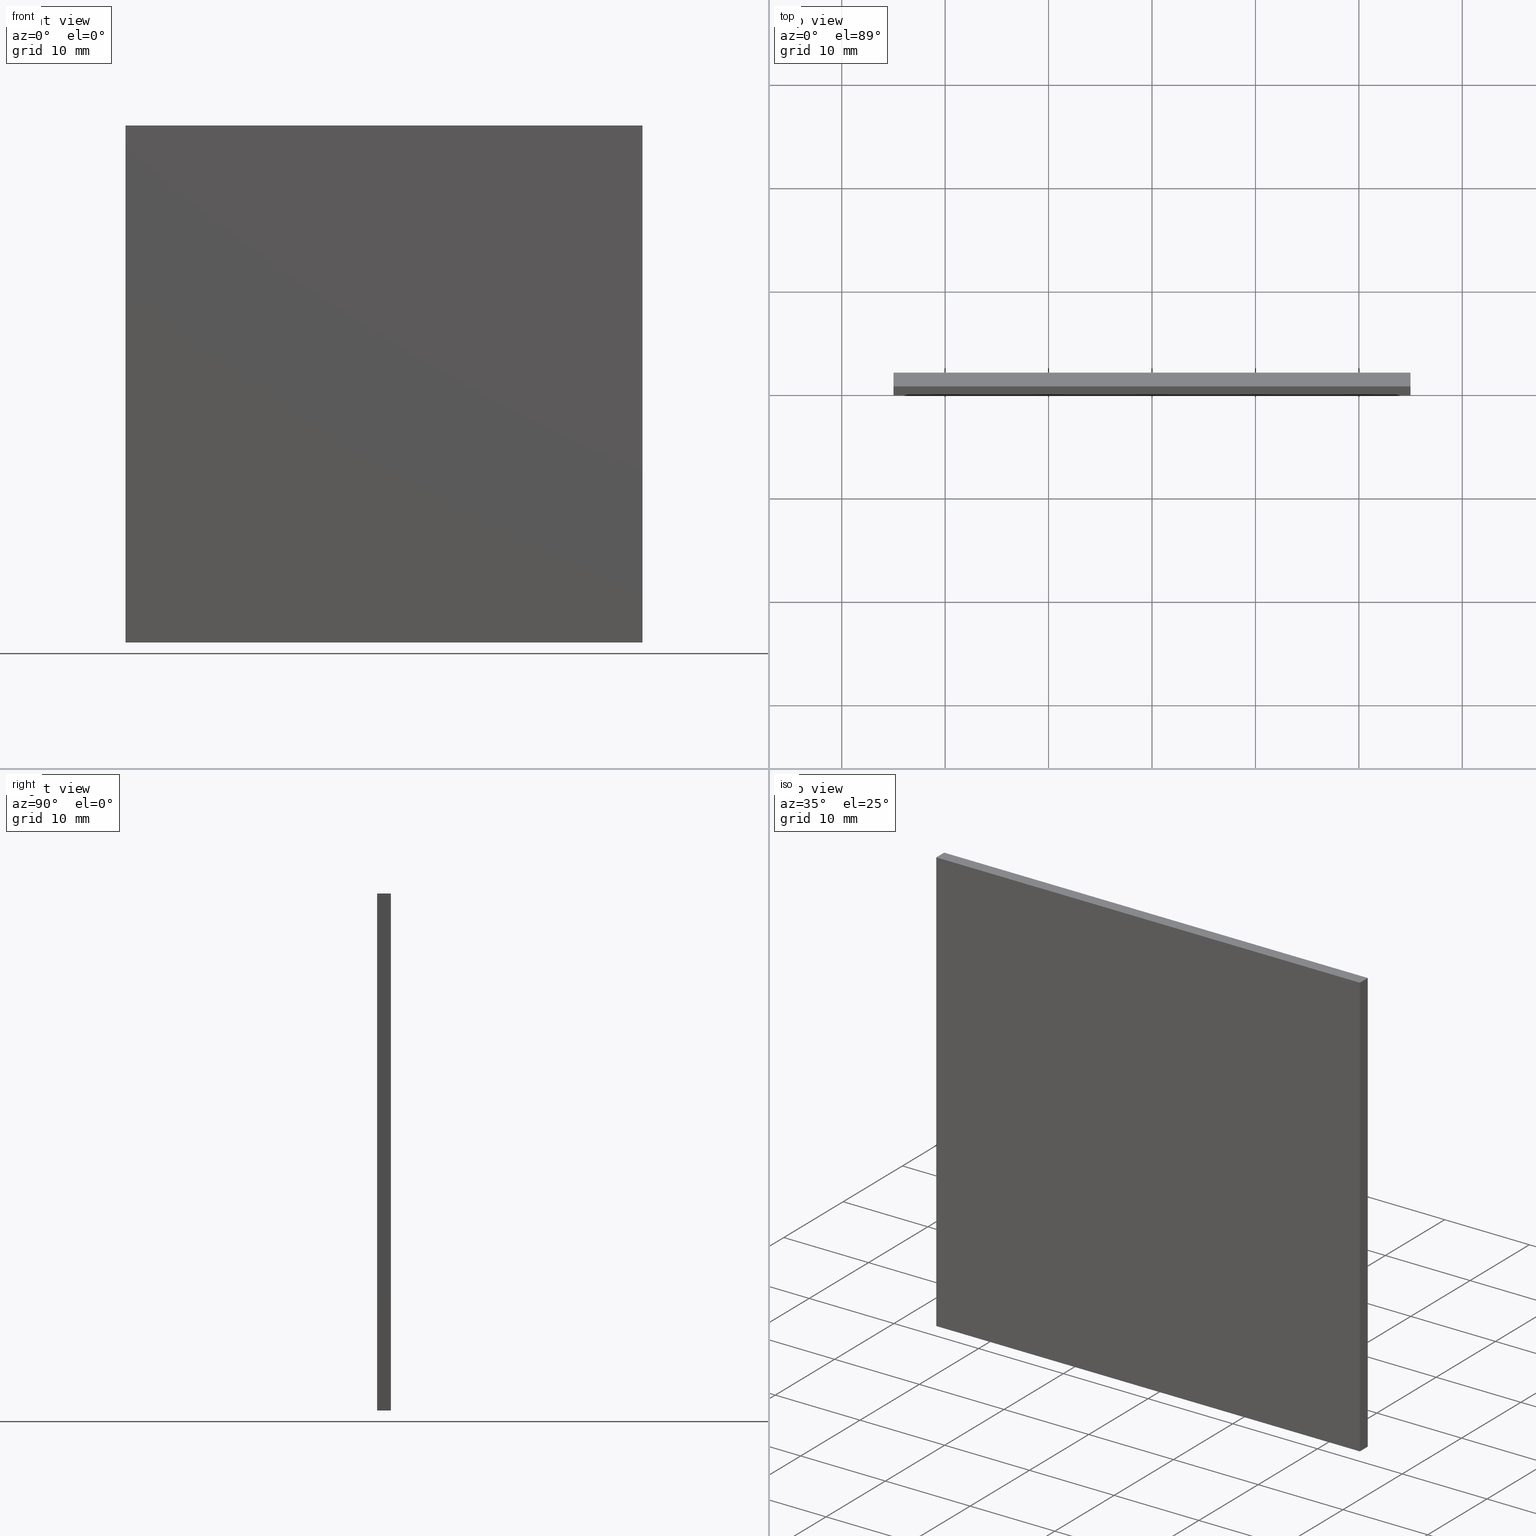
[diagram: canonical four-view strip — front | top / right | iso, engineering-drawing reading convention]
A machine part, canonical four-view strip (front | top / right | iso — engineering-drawing reading convention). The complete STEP part file that produces these views, byte-faithful:
ISO-10303-21;
HEADER;
FILE_DESCRIPTION (( 'STEP AP214' ),
    '1' );
FILE_NAME ('248608.STEP',
    '2019-08-06T06:02:29',
    ( 'user' ),
    ( '΢���й�' ),
    'SwSTEP 2.0',
    'SolidWorks 2016',
    '' );
FILE_SCHEMA (( 'AUTOMOTIVE_DESIGN' ));
ENDSEC;

DATA;
#1 = VECTOR ( 'NONE', #43, 1000.000000000000000 ) ;
#2 =( NAMED_UNIT ( * ) PLANE_ANGLE_UNIT ( ) SI_UNIT ( $, .RADIAN. ) );
#3 = AXIS2_PLACEMENT_3D ( 'NONE', #78, #111, #25 ) ;
#4 = ORIENTED_EDGE ( 'NONE', *, *, #121, .F. ) ;
#5 = MECHANICAL_DESIGN_GEOMETRIC_PRESENTATION_REPRESENTATION (  '', ( #20 ), #128 ) ;
#6 = ORIENTED_EDGE ( 'NONE', *, *, #164, .F. ) ;
#7 = PRODUCT_DEFINITION_FORMATION_WITH_SPECIFIED_SOURCE ( '�κ�', '', #108, .NOT_KNOWN. ) ;
#8 = EDGE_CURVE ( 'NONE', #67, #59, #190, .T. ) ;
#9 = VECTOR ( 'NONE', #26, 1000.000000000000000 ) ;
#10 = PLANE ( 'NONE',  #42 ) ;
#11 = FILL_AREA_STYLE_COLOUR ( '', #187 ) ;
#12 = VERTEX_POINT ( 'NONE', #144 ) ;
#13 = DIRECTION ( 'NONE',  ( 1.000000000000000000, -0.0000000000000000000, 0.0000000000000000000 ) ) ;
#14 =( NAMED_UNIT ( * ) PLANE_ANGLE_UNIT ( ) SI_UNIT ( $, .RADIAN. ) );
#15 = PRESENTATION_LAYER_ASSIGNMENT (  '', '', ( #20 ) ) ;
#16 = EDGE_LOOP ( 'NONE', ( #31, #63, #153, #155 ) ) ;
#17 = PRODUCT_RELATED_PRODUCT_CATEGORY ( 'part', '', ( #108 ) ) ;
#18 = ORIENTED_EDGE ( 'NONE', *, *, #90, .F. ) ;
#19 = AXIS2_PLACEMENT_3D ( 'NONE', #29, #70, #183 ) ;
#20 = STYLED_ITEM ( 'NONE', ( #114 ), #139 ) ;
#21 = DIRECTION ( 'NONE',  ( -0.0000000000000000000, -1.000000000000000000, -0.0000000000000000000 ) ) ;
#22 = ORIENTED_EDGE ( 'NONE', *, *, #106, .F. ) ;
#23 = SURFACE_STYLE_USAGE ( .BOTH. , #110 ) ;
#24 = EDGE_CURVE ( 'NONE', #52, #107, #32, .T. ) ;
#25 = DIRECTION ( 'NONE',  ( -1.000000000000000000, 0.0000000000000000000, -0.0000000000000000000 ) ) ;
#26 = DIRECTION ( 'NONE',  ( -0.0000000000000000000, -1.000000000000000000, -0.0000000000000000000 ) ) ;
#27 = FACE_OUTER_BOUND ( 'NONE', #46, .T. ) ;
#28 = DIRECTION ( 'NONE',  ( -0.0000000000000000000, -0.0000000000000000000, 1.000000000000000000 ) ) ;
#29 = CARTESIAN_POINT ( 'NONE',  ( 25.00000000000000000, 1.330000000000000100, 25.00000000000000000 ) ) ;
#30 = DIRECTION ( 'NONE',  ( 1.000000000000000000, 0.0000000000000000000, 0.0000000000000000000 ) ) ;
#31 = ORIENTED_EDGE ( 'NONE', *, *, #134, .T. ) ;
#32 = LINE ( 'NONE', #109, #65 ) ;
#33 = COLOUR_RGB ( '',1.000000000000000000, 1.000000000000000000, 1.000000000000000000 ) ;
#34 = EDGE_LOOP ( 'NONE', ( #101, #161, #172, #113 ) ) ;
#35 = PRODUCT_DEFINITION ( 'δ֪', '', #7, #53 ) ;
#36 = VECTOR ( 'NONE', #68, 1000.000000000000000 ) ;
#37 = CARTESIAN_POINT ( 'NONE',  ( 25.00000000000000000, 0.0000000000000000000, -25.00000000000000000 ) ) ;
#38 =( GEOMETRIC_REPRESENTATION_CONTEXT ( 3 ) GLOBAL_UNCERTAINTY_ASSIGNED_CONTEXT ( ( #200 ) ) GLOBAL_UNIT_ASSIGNED_CONTEXT ( ( #99, #14, #119 ) ) REPRESENTATION_CONTEXT ( 'NONE', 'WORKASPACE' ) );
#39 =( NAMED_UNIT ( * ) PLANE_ANGLE_UNIT ( ) SI_UNIT ( $, .RADIAN. ) );
#40 = CARTESIAN_POINT ( 'NONE',  ( 0.0000000000000000000, 1.330000000000000100, 0.0000000000000000000 ) ) ;
#41 = ORIENTED_EDGE ( 'NONE', *, *, #24, .T. ) ;
#42 = AXIS2_PLACEMENT_3D ( 'NONE', #175, #192, #89 ) ;
#43 = DIRECTION ( 'NONE',  ( 0.0000000000000000000, 0.0000000000000000000, -1.000000000000000000 ) ) ;
#44 = FACE_OUTER_BOUND ( 'NONE', #123, .T. ) ;
#45 = APPLICATION_CONTEXT ( 'automotive_design' ) ;
#46 = EDGE_LOOP ( 'NONE', ( #198, #86, #145, #141 ) ) ;
#47 = ADVANCED_FACE ( 'NONE', ( #27 ), #10, .F. ) ;
#48 = LINE ( 'NONE', #54, #171 ) ;
#49 = AXIS2_PLACEMENT_3D ( 'NONE', #202, #13, #118 ) ;
#50 = VERTEX_POINT ( 'NONE', #77 ) ;
#51 = LINE ( 'NONE', #151, #177 ) ;
#52 = VERTEX_POINT ( 'NONE', #159 ) ;
#53 = PRODUCT_DEFINITION_CONTEXT ( 'detailed design', #45, 'design' ) ;
#54 = CARTESIAN_POINT ( 'NONE',  ( -25.00000000000000000, 1.330000000000000100, -25.00000000000000000 ) ) ;
#55 = DIRECTION ( 'NONE',  ( -0.0000000000000000000, -0.0000000000000000000, 1.000000000000000000 ) ) ;
#56 = CARTESIAN_POINT ( 'NONE',  ( 25.00000000000000000, 0.0000000000000000000, 25.00000000000000000 ) ) ;
#57 = DIRECTION ( 'NONE',  ( -1.000000000000000000, -0.0000000000000000000, -0.0000000000000000000 ) ) ;
#58 = FILL_AREA_STYLE_COLOUR ( '', #33 ) ;
#59 = VERTEX_POINT ( 'NONE', #37 ) ;
#60 = AXIS2_PLACEMENT_3D ( 'NONE', #40, #181, #80 ) ;
#61 = PRODUCT_DEFINITION_SHAPE ( 'NONE', 'NONE',  #35 ) ;
#62 = FACE_OUTER_BOUND ( 'NONE', #34, .T. ) ;
#63 = ORIENTED_EDGE ( 'NONE', *, *, #24, .F. ) ;
#64 = MANIFOLD_SOLID_BREP ( '͹̨-����1', #185 ) ;
#65 = VECTOR ( 'NONE', #176, 1000.000000000000000 ) ;
#66 = LINE ( 'NONE', #56, #1 ) ;
#67 = VERTEX_POINT ( 'NONE', #129 ) ;
#68 = DIRECTION ( 'NONE',  ( 1.000000000000000000, 0.0000000000000000000, 0.0000000000000000000 ) ) ;
#69 = VECTOR ( 'NONE', #55, 1000.000000000000000 ) ;
#70 = DIRECTION ( 'NONE',  ( -1.000000000000000000, 0.0000000000000000000, 0.0000000000000000000 ) ) ;
#71 = SURFACE_SIDE_STYLE ('',( #168 ) ) ;
#72 = ORIENTED_EDGE ( 'NONE', *, *, #174, .T. ) ;
#73 = LINE ( 'NONE', #135, #170 ) ;
#74 = ORIENTED_EDGE ( 'NONE', *, *, #134, .F. ) ;
#75 = VECTOR ( 'NONE', #194, 1000.000000000000000 ) ;
#76 = CARTESIAN_POINT ( 'NONE',  ( 25.00000000000000000, 1.330000000000000100, -25.00000000000000000 ) ) ;
#77 = CARTESIAN_POINT ( 'NONE',  ( -25.00000000000000000, 0.0000000000000000000, 25.00000000000000000 ) ) ;
#78 = CARTESIAN_POINT ( 'NONE',  ( -25.00000000000000000, 1.330000000000000100, 25.00000000000000000 ) ) ;
#79 = ORIENTED_EDGE ( 'NONE', *, *, #195, .F. ) ;
#80 = DIRECTION ( 'NONE',  ( 0.0000000000000000000, -0.0000000000000000000, -1.000000000000000000 ) ) ;
#81 = DIRECTION ( 'NONE',  ( 0.0000000000000000000, -0.0000000000000000000, -1.000000000000000000 ) ) ;
#82 = UNCERTAINTY_MEASURE_WITH_UNIT (LENGTH_MEASURE( 1.000000000000000100E-005 ), #85, 'distance_accuracy_value', 'NONE');
#83 = PLANE ( 'NONE',  #49 ) ;
#84 = FACE_OUTER_BOUND ( 'NONE', #178, .T. ) ;
#85 =( LENGTH_UNIT ( ) NAMED_UNIT ( * ) SI_UNIT ( .MILLI., .METRE. ) );
#86 = ORIENTED_EDGE ( 'NONE', *, *, #95, .F. ) ;
#87 = VERTEX_POINT ( 'NONE', #160 ) ;
#88 = PRESENTATION_LAYER_ASSIGNMENT (  '', '', ( #142 ) ) ;
#89 = DIRECTION ( 'NONE',  ( 1.000000000000000000, 0.0000000000000000000, -0.0000000000000000000 ) ) ;
#90 = EDGE_CURVE ( 'NONE', #52, #67, #138, .T. ) ;
#91 = ORIENTED_EDGE ( 'NONE', *, *, #164, .T. ) ;
#92 = ADVANCED_FACE ( 'NONE', ( #97 ), #179, .F. ) ;
#93 = PLANE ( 'NONE',  #60 ) ;
#94 = CARTESIAN_POINT ( 'NONE',  ( -25.00000000000000000, 1.330000000000000100, 25.00000000000000000 ) ) ;
#95 = EDGE_CURVE ( 'NONE', #104, #12, #48, .T. ) ;
#96 = CARTESIAN_POINT ( 'NONE',  ( -25.00000000000000000, 0.0000000000000000000, 25.00000000000000000 ) ) ;
#97 = FACE_OUTER_BOUND ( 'NONE', #16, .T. ) ;
#98 = CARTESIAN_POINT ( 'NONE',  ( 0.0000000000000000000, 0.0000000000000000000, 0.0000000000000000000 ) ) ;
#99 =( LENGTH_UNIT ( ) NAMED_UNIT ( * ) SI_UNIT ( .MILLI., .METRE. ) );
#100 =( NAMED_UNIT ( * ) SI_UNIT ( $, .STERADIAN. ) SOLID_ANGLE_UNIT ( ) );
#101 = ORIENTED_EDGE ( 'NONE', *, *, #90, .T. ) ;
#102 = PRESENTATION_STYLE_ASSIGNMENT (( #23 ) ) ;
#103 = ADVANCED_FACE ( 'NONE', ( #62 ), #93, .F. ) ;
#104 = VERTEX_POINT ( 'NONE', #149 ) ;
#105 = EDGE_CURVE ( 'NONE', #87, #52, #166, .T. ) ;
#106 = EDGE_CURVE ( 'NONE', #87, #50, #125, .T. ) ;
#107 = VERTEX_POINT ( 'NONE', #115 ) ;
#108 = PRODUCT ( '248608', '248608', '', ( #137 ) ) ;
#109 = CARTESIAN_POINT ( 'NONE',  ( 25.00000000000000000, 1.330000000000000100, 25.00000000000000000 ) ) ;
#110 = SURFACE_SIDE_STYLE ('',( #143 ) ) ;
#111 = DIRECTION ( 'NONE',  ( 0.0000000000000000000, 0.0000000000000000000, -1.000000000000000000 ) ) ;
#112 = SHAPE_DEFINITION_REPRESENTATION ( #61, #139 ) ;
#113 = ORIENTED_EDGE ( 'NONE', *, *, #105, .T. ) ;
#114 = PRESENTATION_STYLE_ASSIGNMENT (( #184 ) ) ;
#115 = CARTESIAN_POINT ( 'NONE',  ( 25.00000000000000000, 0.0000000000000000000, 25.00000000000000000 ) ) ;
#116 = DIRECTION ( 'NONE',  ( -1.000000000000000000, -0.0000000000000000000, -0.0000000000000000000 ) ) ;
#117 = LINE ( 'NONE', #96, #188 ) ;
#118 = DIRECTION ( 'NONE',  ( 0.0000000000000000000, 0.0000000000000000000, -1.000000000000000000 ) ) ;
#119 =( NAMED_UNIT ( * ) SI_UNIT ( $, .STERADIAN. ) SOLID_ANGLE_UNIT ( ) );
#120 = DIRECTION ( 'NONE',  ( 0.0000000000000000000, 0.0000000000000000000, 1.000000000000000000 ) ) ;
#121 = EDGE_CURVE ( 'NONE', #104, #87, #124, .T. ) ;
#122 = ADVANCED_FACE ( 'NONE', ( #84 ), #133, .T. ) ;
#123 = EDGE_LOOP ( 'NONE', ( #72, #126, #18, #41 ) ) ;
#124 = LINE ( 'NONE', #94, #69 ) ;
#125 = LINE ( 'NONE', #197, #9 ) ;
#126 = ORIENTED_EDGE ( 'NONE', *, *, #8, .F. ) ;
#127 = VECTOR ( 'NONE', #196, 1000.000000000000000 ) ;
#128 =( GEOMETRIC_REPRESENTATION_CONTEXT ( 3 ) GLOBAL_UNCERTAINTY_ASSIGNED_CONTEXT ( ( #82 ) ) GLOBAL_UNIT_ASSIGNED_CONTEXT ( ( #85, #2, #100 ) ) REPRESENTATION_CONTEXT ( 'NONE', 'WORKASPACE' ) );
#129 = CARTESIAN_POINT ( 'NONE',  ( 25.00000000000000000, 1.330000000000000100, -25.00000000000000000 ) ) ;
#130 =( LENGTH_UNIT ( ) NAMED_UNIT ( * ) SI_UNIT ( .MILLI., .METRE. ) );
#131 = EDGE_LOOP ( 'NONE', ( #91, #22, #4, #169 ) ) ;
#132 = CARTESIAN_POINT ( 'NONE',  ( -25.00000000000000000, 1.330000000000000100, 25.00000000000000000 ) ) ;
#133 = PLANE ( 'NONE',  #189 ) ;
#134 = EDGE_CURVE ( 'NONE', #50, #107, #191, .T. ) ;
#135 = CARTESIAN_POINT ( 'NONE',  ( -25.00000000000000000, 1.330000000000000100, -25.00000000000000000 ) ) ;
#136 = APPLICATION_PROTOCOL_DEFINITION ( 'draft international standard', 'automotive_design', 1998, #152 ) ;
#137 = PRODUCT_CONTEXT ( 'NONE', #152, 'mechanical' ) ;
#138 = LINE ( 'NONE', #193, #127 ) ;
#139 = ADVANCED_BREP_SHAPE_REPRESENTATION ( '248608', ( #64, #140 ), #38 ) ;
#140 = AXIS2_PLACEMENT_3D ( 'NONE', #98, #120, #30 ) ;
#141 = ORIENTED_EDGE ( 'NONE', *, *, #8, .T. ) ;
#142 = STYLED_ITEM ( 'NONE', ( #102 ), #64 ) ;
#143 = SURFACE_STYLE_FILL_AREA ( #146 ) ;
#144 = CARTESIAN_POINT ( 'NONE',  ( -25.00000000000000000, 0.0000000000000000000, -25.00000000000000000 ) ) ;
#145 = ORIENTED_EDGE ( 'NONE', *, *, #156, .F. ) ;
#146 = FILL_AREA_STYLE ('',( #11 ) ) ;
#147 =( NAMED_UNIT ( * ) SI_UNIT ( $, .STERADIAN. ) SOLID_ANGLE_UNIT ( ) );
#148 =( GEOMETRIC_REPRESENTATION_CONTEXT ( 3 ) GLOBAL_UNCERTAINTY_ASSIGNED_CONTEXT ( ( #173 ) ) GLOBAL_UNIT_ASSIGNED_CONTEXT ( ( #130, #39, #147 ) ) REPRESENTATION_CONTEXT ( 'NONE', 'WORKASPACE' ) );
#149 = CARTESIAN_POINT ( 'NONE',  ( -25.00000000000000000, 1.330000000000000100, -25.00000000000000000 ) ) ;
#150 = VECTOR ( 'NONE', #21, 1000.000000000000000 ) ;
#151 = CARTESIAN_POINT ( 'NONE',  ( -25.00000000000000000, 0.0000000000000000000, -25.00000000000000000 ) ) ;
#152 = APPLICATION_CONTEXT ( 'automotive_design' ) ;
#153 = ORIENTED_EDGE ( 'NONE', *, *, #105, .F. ) ;
#154 = APPLICATION_PROTOCOL_DEFINITION ( 'draft international standard', 'automotive_design', 1998, #45 ) ;
#155 = ORIENTED_EDGE ( 'NONE', *, *, #106, .T. ) ;
#156 = EDGE_CURVE ( 'NONE', #67, #104, #73, .T. ) ;
#157 = FACE_OUTER_BOUND ( 'NONE', #131, .T. ) ;
#158 = ORIENTED_EDGE ( 'NONE', *, *, #174, .F. ) ;
#159 = CARTESIAN_POINT ( 'NONE',  ( 25.00000000000000000, 1.330000000000000100, 25.00000000000000000 ) ) ;
#160 = CARTESIAN_POINT ( 'NONE',  ( -25.00000000000000000, 1.330000000000000100, 25.00000000000000000 ) ) ;
#161 = ORIENTED_EDGE ( 'NONE', *, *, #156, .T. ) ;
#162 = DIRECTION ( 'NONE',  ( -0.0000000000000000000, -1.000000000000000000, -0.0000000000000000000 ) ) ;
#163 = CARTESIAN_POINT ( 'NONE',  ( 0.0000000000000000000, 0.0000000000000000000, 0.0000000000000000000 ) ) ;
#164 = EDGE_CURVE ( 'NONE', #12, #50, #117, .T. ) ;
#165 = PLANE ( 'NONE',  #19 ) ;
#166 = LINE ( 'NONE', #132, #75 ) ;
#167 = FILL_AREA_STYLE ('',( #58 ) ) ;
#168 = SURFACE_STYLE_FILL_AREA ( #167 ) ;
#169 = ORIENTED_EDGE ( 'NONE', *, *, #95, .T. ) ;
#170 = VECTOR ( 'NONE', #116, 1000.000000000000000 ) ;
#171 = VECTOR ( 'NONE', #162, 1000.000000000000000 ) ;
#172 = ORIENTED_EDGE ( 'NONE', *, *, #121, .T. ) ;
#173 = UNCERTAINTY_MEASURE_WITH_UNIT (LENGTH_MEASURE( 1.000000000000000100E-005 ), #130, 'distance_accuracy_value', 'NONE');
#174 = EDGE_CURVE ( 'NONE', #107, #59, #66, .T. ) ;
#175 = CARTESIAN_POINT ( 'NONE',  ( -25.00000000000000000, 1.330000000000000100, -25.00000000000000000 ) ) ;
#176 = DIRECTION ( 'NONE',  ( -0.0000000000000000000, -1.000000000000000000, -0.0000000000000000000 ) ) ;
#177 = VECTOR ( 'NONE', #57, 1000.000000000000000 ) ;
#178 = EDGE_LOOP ( 'NONE', ( #158, #74, #6, #79 ) ) ;
#179 = PLANE ( 'NONE',  #3 ) ;
#180 = MECHANICAL_DESIGN_GEOMETRIC_PRESENTATION_REPRESENTATION (  '', ( #142 ), #148 ) ;
#181 = DIRECTION ( 'NONE',  ( 0.0000000000000000000, -1.000000000000000000, 0.0000000000000000000 ) ) ;
#182 = DIRECTION ( 'NONE',  ( 0.0000000000000000000, -1.000000000000000000, 0.0000000000000000000 ) ) ;
#183 = DIRECTION ( 'NONE',  ( 0.0000000000000000000, 0.0000000000000000000, 1.000000000000000000 ) ) ;
#184 = SURFACE_STYLE_USAGE ( .BOTH. , #71 ) ;
#185 = CLOSED_SHELL ( 'NONE', ( #199, #47, #186, #92, #103, #122 ) ) ;
#186 = ADVANCED_FACE ( 'NONE', ( #157 ), #83, .F. ) ;
#187 = COLOUR_RGB ( '',1.000000000000000000, 1.000000000000000000, 1.000000000000000000 ) ;
#188 = VECTOR ( 'NONE', #28, 1000.000000000000000 ) ;
#189 = AXIS2_PLACEMENT_3D ( 'NONE', #163, #182, #81 ) ;
#190 = LINE ( 'NONE', #76, #150 ) ;
#191 = LINE ( 'NONE', #201, #36 ) ;
#192 = DIRECTION ( 'NONE',  ( 0.0000000000000000000, 0.0000000000000000000, 1.000000000000000000 ) ) ;
#193 = CARTESIAN_POINT ( 'NONE',  ( 25.00000000000000000, 1.330000000000000100, 25.00000000000000000 ) ) ;
#194 = DIRECTION ( 'NONE',  ( 1.000000000000000000, 0.0000000000000000000, 0.0000000000000000000 ) ) ;
#195 = EDGE_CURVE ( 'NONE', #59, #12, #51, .T. ) ;
#196 = DIRECTION ( 'NONE',  ( 0.0000000000000000000, 0.0000000000000000000, -1.000000000000000000 ) ) ;
#197 = CARTESIAN_POINT ( 'NONE',  ( -25.00000000000000000, 1.330000000000000100, 25.00000000000000000 ) ) ;
#198 = ORIENTED_EDGE ( 'NONE', *, *, #195, .T. ) ;
#199 = ADVANCED_FACE ( 'NONE', ( #44 ), #165, .F. ) ;
#200 = UNCERTAINTY_MEASURE_WITH_UNIT (LENGTH_MEASURE( 1.000000000000000100E-005 ), #99, 'distance_accuracy_value', 'NONE');
#201 = CARTESIAN_POINT ( 'NONE',  ( -25.00000000000000000, 0.0000000000000000000, 25.00000000000000000 ) ) ;
#202 = CARTESIAN_POINT ( 'NONE',  ( -25.00000000000000000, 1.330000000000000100, 25.00000000000000000 ) ) ;
ENDSEC;
END-ISO-10303-21;
